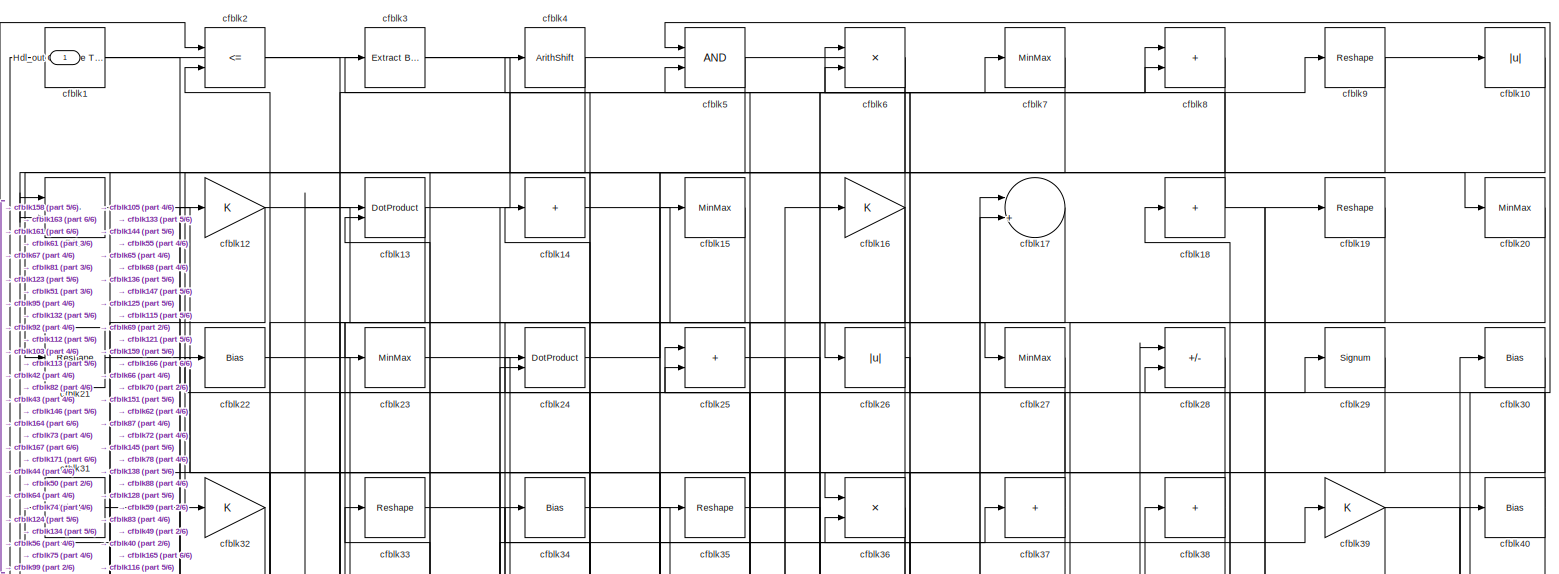
[diagram: root canvas - part 1/6, full width, top band]
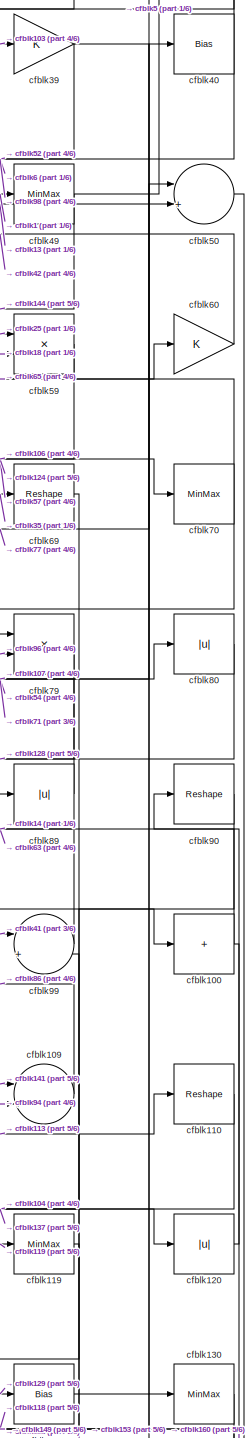
[diagram: root canvas - part 2/6, middle right region]
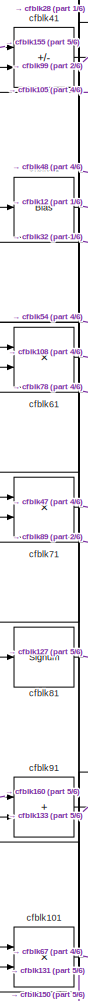
[diagram: root canvas - part 3/6, middle left region]
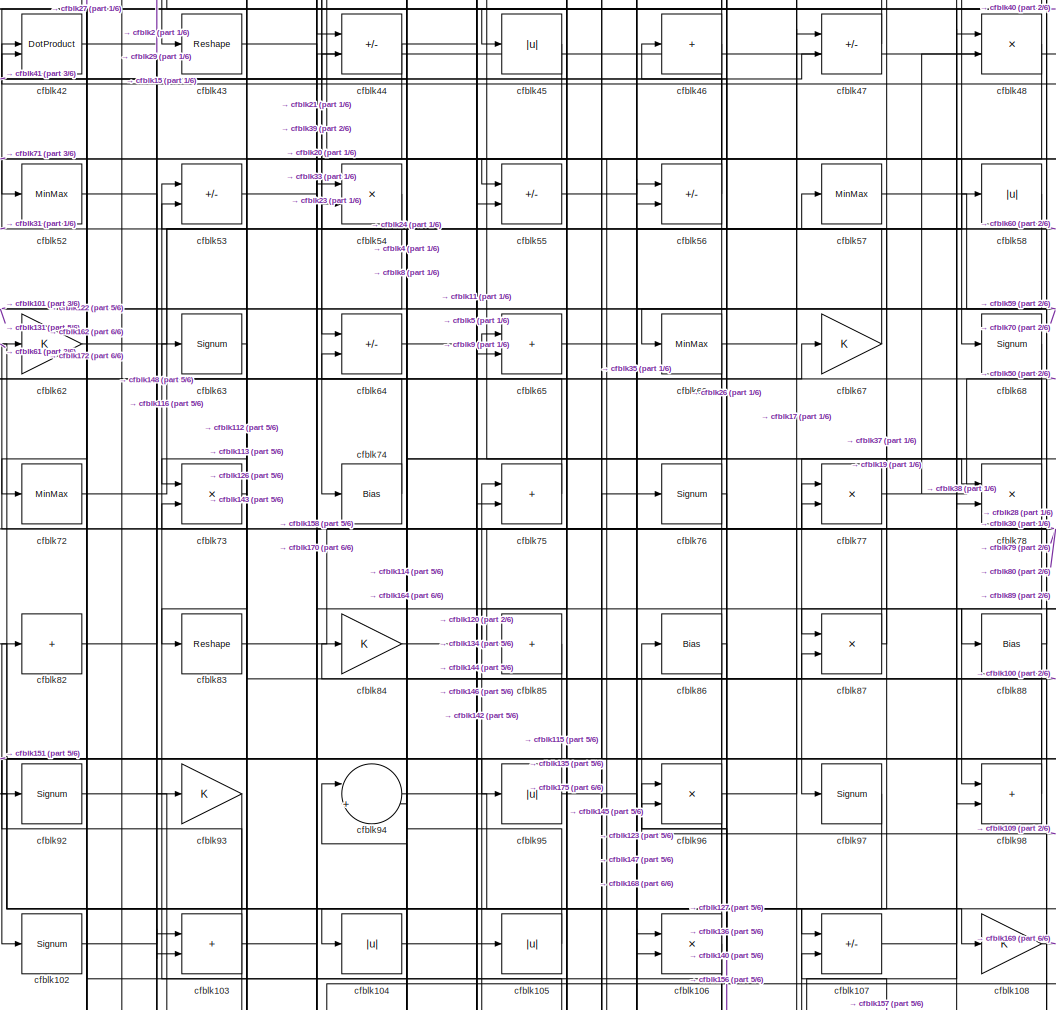
[diagram: root canvas - part 4/6, central region]
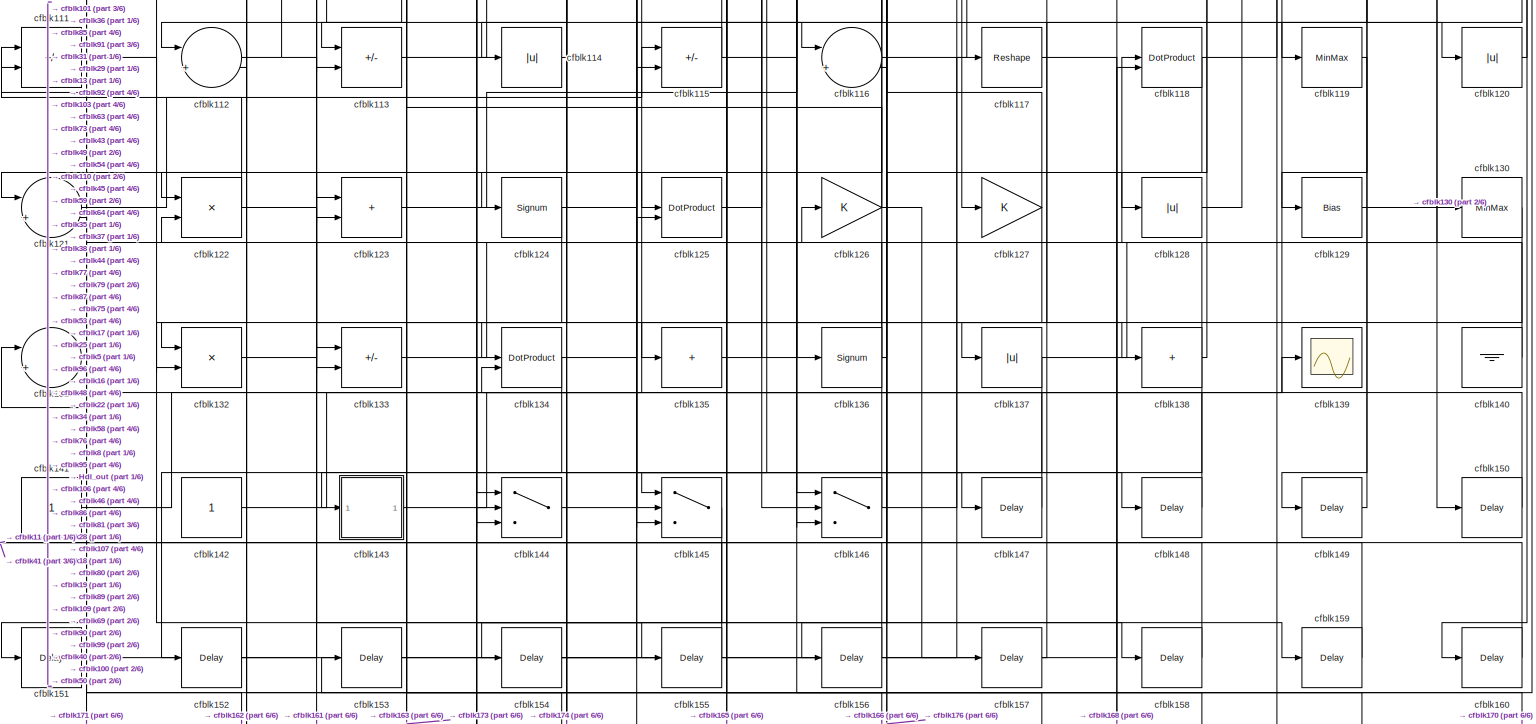
[diagram: root canvas - part 5/6, full width, bottom band]
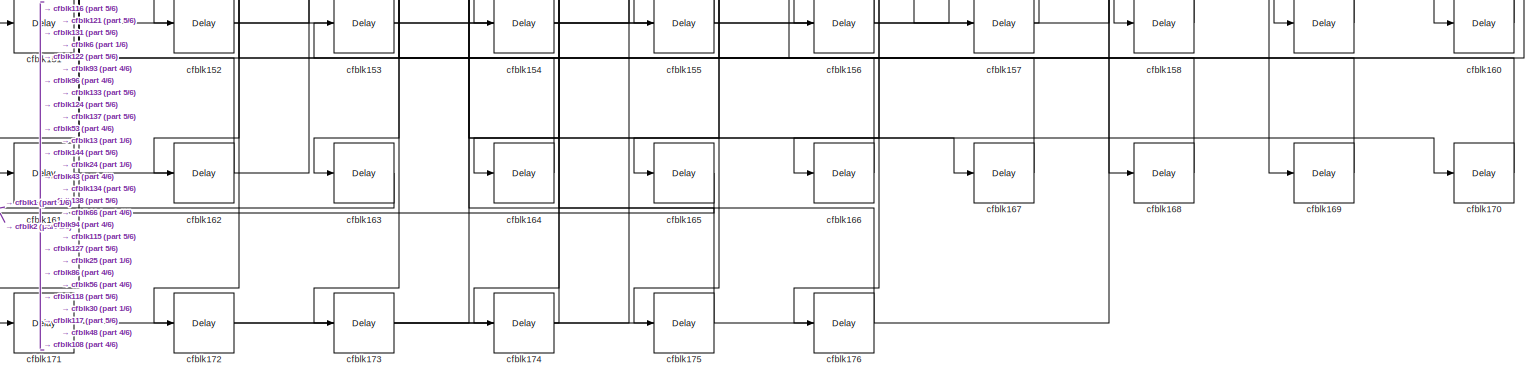
[diagram: root canvas - part 6/6, full width, bottom band]
MODEL slx_bb06ebc28763
KIND model
CONFIG AbsTol = auto
CONFIG EnableMultiTasking = off
CONFIG FixedStep = auto
CONFIG MaxStep = auto
CONFIG MinStep = auto
CONFIG RelTol = 1e-3
CONFIG SampleTimeConstraint = Unconstrained
CONFIG SolverName = VariableStepAuto
CONFIG StartTime = 0.0
CONFIG StopTime = 10.0
BLOCK [Outport] Hdl_out
  OutDataTypeStr = uint8
BLOCK [Reference] cfblk1  REF=hdlsllib/Logic and Bit
Operations/Compare
To Constant
  SourceBlock = hdlsllib/Logic and Bit\nOperations/Compare\nTo Constant
  SourceType = Compare To Constant
BLOCK [Abs] cfblk10
  OutDataTypeStr = uint8
  SaturateOnIntegerOverflow = off
BLOCK [Sum] cfblk100
  IconShape = rectangular
  Inputs = +
  OutDataTypeStr = uint8
BLOCK [Product] cfblk101
  Inputs = */
  OutDataTypeStr = uint8
  RndMeth = Zero
  SaturateOnIntegerOverflow = on
BLOCK [Signum] cfblk102
BLOCK [Sum] cfblk103
  IconShape = rectangular
  OutDataTypeStr = uint8
BLOCK [Abs] cfblk104
  OutDataTypeStr = uint8
  SaturateOnIntegerOverflow = off
BLOCK [Abs] cfblk105
  OutDataTypeStr = uint8
  SaturateOnIntegerOverflow = off
BLOCK [Product] cfblk106
  Inputs = */
  OutDataTypeStr = uint8
  RndMeth = Zero
  SaturateOnIntegerOverflow = on
BLOCK [Sum] cfblk107
  IconShape = rectangular
  Inputs = +-
  OutDataTypeStr = uint8
BLOCK [Gain] cfblk108
  OutDataTypeStr = uint8
BLOCK [Sum] cfblk109
  Inputs = |++
  OutDataTypeStr = uint8
BLOCK [Sum] cfblk11
  IconShape = rectangular
  Inputs = +-
  OutDataTypeStr = uint8
BLOCK [Reshape] cfblk110
BLOCK [Sum] cfblk111
  IconShape = rectangular
  Inputs = +-
  OutDataTypeStr = uint8
BLOCK [Sum] cfblk112
  Inputs = |++
  OutDataTypeStr = uint8
BLOCK [Sum] cfblk113
  IconShape = rectangular
  Inputs = +-
  OutDataTypeStr = uint8
BLOCK [Abs] cfblk114
  OutDataTypeStr = uint8
  SaturateOnIntegerOverflow = off
BLOCK [Sum] cfblk115
  IconShape = rectangular
  Inputs = +-
  OutDataTypeStr = uint8
BLOCK [Sum] cfblk116
  Inputs = |++
  OutDataTypeStr = uint8
BLOCK [Reshape] cfblk117
BLOCK [DotProduct] cfblk118
  OutDataTypeStr = uint8
BLOCK [MinMax] cfblk119
  OutDataTypeStr = uint8
BLOCK [Gain] cfblk12
  OutDataTypeStr = uint8
BLOCK [Abs] cfblk120
  OutDataTypeStr = uint8
  SaturateOnIntegerOverflow = off
BLOCK [Sum] cfblk121
  Inputs = |++
  OutDataTypeStr = uint8
BLOCK [Product] cfblk122
  Inputs = */
  OutDataTypeStr = uint8
  RndMeth = Zero
  SaturateOnIntegerOverflow = on
BLOCK [Sum] cfblk123
  IconShape = rectangular
  OutDataTypeStr = uint8
BLOCK [Signum] cfblk124
BLOCK [DotProduct] cfblk125
  OutDataTypeStr = uint8
BLOCK [Gain] cfblk126
  OutDataTypeStr = uint8
BLOCK [Gain] cfblk127
  OutDataTypeStr = uint8
BLOCK [Abs] cfblk128
  OutDataTypeStr = uint8
  SaturateOnIntegerOverflow = off
BLOCK [Bias] cfblk129
  Bias = 0.0
  SaturateOnIntegerOverflow = off
BLOCK [DotProduct] cfblk13
  OutDataTypeStr = uint8
BLOCK [MinMax] cfblk130
  OutDataTypeStr = uint8
BLOCK [Sum] cfblk131
  Inputs = |++
  OutDataTypeStr = uint8
BLOCK [Product] cfblk132
  Inputs = */
  OutDataTypeStr = uint8
  RndMeth = Zero
  SaturateOnIntegerOverflow = on
BLOCK [Sum] cfblk133
  IconShape = rectangular
  Inputs = +-
  OutDataTypeStr = uint8
BLOCK [DotProduct] cfblk134
  OutDataTypeStr = uint8
BLOCK [Sum] cfblk135
  IconShape = rectangular
  Inputs = +
  OutDataTypeStr = uint8
BLOCK [Signum] cfblk136
BLOCK [Abs] cfblk137
  OutDataTypeStr = uint8
  SaturateOnIntegerOverflow = off
BLOCK [Sum] cfblk138
  IconShape = rectangular
  Inputs = +
  OutDataTypeStr = uint8
BLOCK [Scope] cfblk139
  Floating = off
  NumInputPorts = 1
  ScopeSpecificationString = Simulink.scopes.TimeScopeBlockCfg('CurrentConfiguration', extmgr.ConfigurationSet(extmgr.Configuration('Core','General UI',true),extmgr.Configuration('Core','Source UI',true),extmgr.Configuration('Sources','WiredSimulink',true,'DataLoggingVariableName','ScopeData2','DataLoggingSaveFormat','Array','DataLoggingLimitDataPoints',true,'DataLoggingDecimation','1'),extmgr.Configuration('Visuals','Time Do...<+868ch>
BLOCK [Sum] cfblk14
  IconShape = rectangular
  Inputs = +
  OutDataTypeStr = uint8
BLOCK [Ground] cfblk140
BLOCK [Constant] cfblk141
  OutDataTypeStr = uint8
  SampleTime = -1
BLOCK [Constant] cfblk142
  OutDataTypeStr = uint8
  SampleTime = -1
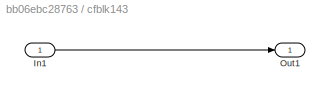
BLOCK [SubSystem] cfblk143
  LibrarySourceBlock = hdlsllib/Ports &\nSubsystems/Subsystem
BLOCK [Inport] cfblk143/In1
BLOCK [Outport] cfblk143/Out1
BLOCK [Switch] cfblk144
  InputSameDT = off
  OutDataTypeStr = uint8
  SaturateOnIntegerOverflow = off
BLOCK [Switch] cfblk145
  InputSameDT = off
  OutDataTypeStr = uint8
  SaturateOnIntegerOverflow = off
BLOCK [Switch] cfblk146
  InputSameDT = off
  OutDataTypeStr = uint8
  SaturateOnIntegerOverflow = off
BLOCK [Delay] cfblk147
  InputPortMap = u0
  SampleTime = 1
BLOCK [Delay] cfblk148
  InputPortMap = u0
  SampleTime = 1
BLOCK [Delay] cfblk149
  InputPortMap = u0
  SampleTime = 1
BLOCK [MinMax] cfblk15
  OutDataTypeStr = uint8
BLOCK [Delay] cfblk150
  InputPortMap = u0
  SampleTime = 1
BLOCK [Delay] cfblk151
  InputPortMap = u0
  SampleTime = 1
BLOCK [Delay] cfblk152
  InputPortMap = u0
  SampleTime = 1
BLOCK [Delay] cfblk153
  InputPortMap = u0
  SampleTime = 1
BLOCK [Delay] cfblk154
  InputPortMap = u0
  SampleTime = 1
BLOCK [Delay] cfblk155
  InputPortMap = u0
  SampleTime = 1
BLOCK [Delay] cfblk156
  InputPortMap = u0
  SampleTime = 1
BLOCK [Delay] cfblk157
  InputPortMap = u0
  SampleTime = 1
BLOCK [Delay] cfblk158
  InputPortMap = u0
  SampleTime = 1
BLOCK [Delay] cfblk159
  InputPortMap = u0
  SampleTime = 1
BLOCK [Gain] cfblk16
  OutDataTypeStr = uint8
BLOCK [Delay] cfblk160
  InputPortMap = u0
  SampleTime = 1
BLOCK [Delay] cfblk161
  InputPortMap = u0
  SampleTime = 1
BLOCK [Delay] cfblk162
  InputPortMap = u0
  SampleTime = 1
BLOCK [Delay] cfblk163
  InputPortMap = u0
  SampleTime = 1
BLOCK [Delay] cfblk164
  InputPortMap = u0
  SampleTime = 1
BLOCK [Delay] cfblk165
  InputPortMap = u0
  SampleTime = 1
BLOCK [Delay] cfblk166
  InputPortMap = u0
  SampleTime = 1
BLOCK [Delay] cfblk167
  InputPortMap = u0
  SampleTime = 1
BLOCK [Delay] cfblk168
  InputPortMap = u0
  SampleTime = 1
BLOCK [Delay] cfblk169
  InputPortMap = u0
  SampleTime = 1
BLOCK [Sum] cfblk17
  Inputs = |++
  OutDataTypeStr = uint8
BLOCK [Delay] cfblk170
  InputPortMap = u0
  SampleTime = 1
BLOCK [Delay] cfblk171
  InputPortMap = u0
  SampleTime = 1
BLOCK [Delay] cfblk172
  InputPortMap = u0
  SampleTime = 1
BLOCK [Delay] cfblk173
  InputPortMap = u0
  SampleTime = 1
BLOCK [Delay] cfblk174
  InputPortMap = u0
  SampleTime = 1
BLOCK [Delay] cfblk175
  InputPortMap = u0
  SampleTime = 1
BLOCK [Delay] cfblk176
  InputPortMap = u0
  SampleTime = 1
BLOCK [Sum] cfblk18
  IconShape = rectangular
  Inputs = +
  OutDataTypeStr = uint8
BLOCK [Reshape] cfblk19
BLOCK [RelationalOperator] cfblk2
  InputSameDT = off
  Operator = <=
  OutDataTypeStr = boolean
BLOCK [MinMax] cfblk20
  OutDataTypeStr = uint8
BLOCK [Reshape] cfblk21
BLOCK [Bias] cfblk22
  Bias = 0.0
  SaturateOnIntegerOverflow = off
BLOCK [MinMax] cfblk23
  OutDataTypeStr = uint8
BLOCK [DotProduct] cfblk24
  OutDataTypeStr = uint8
BLOCK [Sum] cfblk25
  IconShape = rectangular
  OutDataTypeStr = uint8
BLOCK [Abs] cfblk26
  OutDataTypeStr = uint8
  SaturateOnIntegerOverflow = off
BLOCK [MinMax] cfblk27
  OutDataTypeStr = uint8
BLOCK [Sum] cfblk28
  IconShape = rectangular
  Inputs = +-
  OutDataTypeStr = uint8
BLOCK [Signum] cfblk29
BLOCK [Reference] cfblk3  REF=simulink/Logic and Bit
Operations/Extract Bits
  LibrarySourceBlock = hdlsllib/Logic and Bit\nOperations/Extract Bits
  SourceBlock = simulink/Logic and Bit\nOperations/Extract Bits
  SourceType = Extract Bits
BLOCK [Bias] cfblk30
  Bias = 0.0
  SaturateOnIntegerOverflow = off
BLOCK [MinMax] cfblk31
  OutDataTypeStr = uint8
BLOCK [Gain] cfblk32
  OutDataTypeStr = uint8
BLOCK [Reshape] cfblk33
BLOCK [Bias] cfblk34
  Bias = 0.0
  SaturateOnIntegerOverflow = off
BLOCK [Reshape] cfblk35
BLOCK [Product] cfblk36
  Inputs = */
  OutDataTypeStr = uint8
  RndMeth = Zero
  SaturateOnIntegerOverflow = on
BLOCK [Sum] cfblk37
  IconShape = rectangular
  Inputs = +
  OutDataTypeStr = uint8
BLOCK [Sum] cfblk38
  IconShape = rectangular
  Inputs = +
  OutDataTypeStr = uint8
BLOCK [Gain] cfblk39
  OutDataTypeStr = uint8
BLOCK [ArithShift] cfblk4
  BitShiftNumber = 8
  InputPortMap = u0
BLOCK [Bias] cfblk40
  Bias = 0.0
  SaturateOnIntegerOverflow = off
BLOCK [Sum] cfblk41
  IconShape = rectangular
  Inputs = +-
  OutDataTypeStr = uint8
BLOCK [DotProduct] cfblk42
  OutDataTypeStr = uint8
BLOCK [Reshape] cfblk43
BLOCK [Sum] cfblk44
  IconShape = rectangular
  Inputs = +-
  OutDataTypeStr = uint8
BLOCK [Abs] cfblk45
  OutDataTypeStr = uint8
  SaturateOnIntegerOverflow = off
BLOCK [Sum] cfblk46
  IconShape = rectangular
  Inputs = +
  OutDataTypeStr = uint8
BLOCK [Sum] cfblk47
  IconShape = rectangular
  Inputs = +-
  OutDataTypeStr = uint8
BLOCK [Product] cfblk48
  Inputs = */
  OutDataTypeStr = uint8
  RndMeth = Zero
  SaturateOnIntegerOverflow = on
BLOCK [MinMax] cfblk49
  OutDataTypeStr = uint8
BLOCK [Logic] cfblk5
  AllPortsSameDT = off
  OutDataTypeStr = boolean
BLOCK [Sum] cfblk50
  Inputs = |++
  OutDataTypeStr = uint8
BLOCK [Bias] cfblk51
  Bias = 0.0
  SaturateOnIntegerOverflow = off
BLOCK [MinMax] cfblk52
  OutDataTypeStr = uint8
BLOCK [Sum] cfblk53
  IconShape = rectangular
  Inputs = +-
  OutDataTypeStr = uint8
BLOCK [Product] cfblk54
  Inputs = */
  OutDataTypeStr = uint8
  RndMeth = Zero
  SaturateOnIntegerOverflow = on
BLOCK [Sum] cfblk55
  IconShape = rectangular
  Inputs = +-
  OutDataTypeStr = uint8
BLOCK [Sum] cfblk56
  IconShape = rectangular
  Inputs = +-
  OutDataTypeStr = uint8
BLOCK [MinMax] cfblk57
  OutDataTypeStr = uint8
BLOCK [Abs] cfblk58
  OutDataTypeStr = uint8
  SaturateOnIntegerOverflow = off
BLOCK [Product] cfblk59
  Inputs = */
  OutDataTypeStr = uint8
  RndMeth = Zero
  SaturateOnIntegerOverflow = on
BLOCK [Product] cfblk6
  Inputs = */
  OutDataTypeStr = uint8
  RndMeth = Zero
  SaturateOnIntegerOverflow = on
BLOCK [Gain] cfblk60
  OutDataTypeStr = uint8
BLOCK [Product] cfblk61
  Inputs = */
  OutDataTypeStr = uint8
  RndMeth = Zero
  SaturateOnIntegerOverflow = on
BLOCK [Gain] cfblk62
  OutDataTypeStr = uint8
BLOCK [Signum] cfblk63
BLOCK [Sum] cfblk64
  IconShape = rectangular
  Inputs = +-
  OutDataTypeStr = uint8
BLOCK [Sum] cfblk65
  IconShape = rectangular
  OutDataTypeStr = uint8
BLOCK [MinMax] cfblk66
  OutDataTypeStr = uint8
BLOCK [Gain] cfblk67
  OutDataTypeStr = uint8
BLOCK [Signum] cfblk68
BLOCK [Reshape] cfblk69
BLOCK [MinMax] cfblk7
  OutDataTypeStr = uint8
BLOCK [MinMax] cfblk70
  OutDataTypeStr = uint8
BLOCK [Product] cfblk71
  Inputs = */
  OutDataTypeStr = uint8
  RndMeth = Zero
  SaturateOnIntegerOverflow = on
BLOCK [MinMax] cfblk72
  OutDataTypeStr = uint8
BLOCK [Product] cfblk73
  Inputs = */
  OutDataTypeStr = uint8
  RndMeth = Zero
  SaturateOnIntegerOverflow = on
BLOCK [Bias] cfblk74
  Bias = 0.0
  SaturateOnIntegerOverflow = off
BLOCK [Sum] cfblk75
  IconShape = rectangular
  OutDataTypeStr = uint8
BLOCK [Signum] cfblk76
BLOCK [Product] cfblk77
  Inputs = */
  OutDataTypeStr = uint8
  RndMeth = Zero
  SaturateOnIntegerOverflow = on
BLOCK [Product] cfblk78
  Inputs = */
  OutDataTypeStr = uint8
  RndMeth = Zero
  SaturateOnIntegerOverflow = on
BLOCK [Product] cfblk79
  Inputs = */
  OutDataTypeStr = uint8
  RndMeth = Zero
  SaturateOnIntegerOverflow = on
BLOCK [Sum] cfblk8
  IconShape = rectangular
  OutDataTypeStr = uint8
BLOCK [Abs] cfblk80
  OutDataTypeStr = uint8
  SaturateOnIntegerOverflow = off
BLOCK [Signum] cfblk81
BLOCK [Sum] cfblk82
  IconShape = rectangular
  Inputs = +
  OutDataTypeStr = uint8
BLOCK [Reshape] cfblk83
BLOCK [Gain] cfblk84
  OutDataTypeStr = uint8
BLOCK [Sum] cfblk85
  IconShape = rectangular
  Inputs = +
  OutDataTypeStr = uint8
BLOCK [Bias] cfblk86
  Bias = 0.0
  SaturateOnIntegerOverflow = off
BLOCK [Product] cfblk87
  Inputs = */
  OutDataTypeStr = uint8
  RndMeth = Zero
  SaturateOnIntegerOverflow = on
BLOCK [Bias] cfblk88
  Bias = 0.0
  SaturateOnIntegerOverflow = off
BLOCK [Abs] cfblk89
  OutDataTypeStr = uint8
  SaturateOnIntegerOverflow = off
BLOCK [Reshape] cfblk9
BLOCK [Reshape] cfblk90
BLOCK [Sum] cfblk91
  IconShape = rectangular
  OutDataTypeStr = uint8
BLOCK [Signum] cfblk92
BLOCK [Gain] cfblk93
  OutDataTypeStr = uint8
BLOCK [Sum] cfblk94
  Inputs = |++
  OutDataTypeStr = uint8
BLOCK [Abs] cfblk95
  OutDataTypeStr = uint8
  SaturateOnIntegerOverflow = off
BLOCK [Product] cfblk96
  Inputs = */
  OutDataTypeStr = uint8
  RndMeth = Zero
  SaturateOnIntegerOverflow = on
BLOCK [Signum] cfblk97
BLOCK [Sum] cfblk98
  IconShape = rectangular
  OutDataTypeStr = uint8
BLOCK [Sum] cfblk99
  Inputs = |++
  OutDataTypeStr = uint8
NET cfblk100:1 -> cfblk160:1, cfblk63:1
LINE cfblk101:1 -> cfblk67:1
LINE cfblk102:1 -> cfblk44:2
NET cfblk103:1 -> cfblk112:2, cfblk39:1, cfblk77:2, cfblk82:1
LINE cfblk104:1 -> cfblk120:1
LINE cfblk105:1 -> cfblk41:2
LINE cfblk106:1 -> cfblk145:2
LINE cfblk107:1 -> cfblk80:1
LINE cfblk108:1 -> cfblk169:1
LINE cfblk109:1 -> cfblk86:1
LINE cfblk10:1 -> cfblk21:1
LINE cfblk110:1 -> cfblk137:1
LINE cfblk111:1 -> cfblk155:1
NET cfblk112:1 -> cfblk13:1, cfblk159:1
LINE cfblk113:1 -> cfblk110:1
LINE cfblk114:1 -> cfblk64:2
NET cfblk115:1 -> cfblk53:1, cfblk8:1
NET cfblk116:1 -> cfblk171:1, cfblk22:1, cfblk28:1
LINE cfblk117:1 -> cfblk168:1
NET cfblk118:1 -> cfblk176:1, cfblk89:1
LINE cfblk119:1 -> cfblk149:1
LINE cfblk11:1 -> cfblk105:1
LINE cfblk120:1 -> cfblk90:1
LINE cfblk121:1 -> cfblk115:1
NET cfblk122:1 -> cfblk111:2, cfblk138:1
LINE cfblk123:1 -> cfblk58:1
NET cfblk124:1 -> cfblk173:1, cfblk34:1, cfblk79:1
LINE cfblk125:1 -> cfblk16:1
NET cfblk126:1 -> cfblk157:1, cfblk73:2
NET cfblk127:1 -> cfblk165:1, cfblk46:1
LINE cfblk128:1 -> cfblk19:1
LINE cfblk129:1 -> cfblk150:1
NET cfblk12:1 -> cfblk26:1, cfblk81:1
NET cfblk130:1 -> cfblk118:1, cfblk132:2
LINE cfblk131:1 -> cfblk91:2
LINE cfblk132:1 -> cfblk126:1
NET cfblk133:1 -> cfblk148:1, cfblk35:1
NET cfblk134:1 -> cfblk152:1, cfblk77:1
NET cfblk135:1 -> cfblk106:1, cfblk76:1
NET cfblk136:1 -> cfblk111:1, cfblk96:2
NET cfblk137:1 -> cfblk163:1, cfblk40:1
NET cfblk138:1 -> cfblk174:1, cfblk18:1, cfblk25:1
NET cfblk13:1 -> cfblk113:2, cfblk167:1, cfblk50:2, cfblk7:1
LINE cfblk140:1 -> cfblk96:1
LINE cfblk141:1 -> cfblk109:1
LINE cfblk142:1 -> cfblk75:1
LINE cfblk143/In1:1 -> cfblk143/Out1:1
LINE cfblk143:1 -> cfblk139:1
NET cfblk144:1 -> cfblk37:1, cfblk87:2
LINE cfblk145:1 -> cfblk154:1
NET cfblk146:1 -> Hdl_out:1, cfblk117:1
LINE cfblk147:1 -> cfblk5:2
LINE cfblk148:1 -> cfblk103:1
LINE cfblk149:1 -> cfblk99:2
LINE cfblk14:1 -> cfblk27:1
LINE cfblk150:1 -> cfblk101:2
LINE cfblk151:1 -> cfblk17:2
LINE cfblk152:1 -> cfblk123:1
LINE cfblk153:1 -> cfblk118:2
LINE cfblk154:1 -> cfblk125:2
LINE cfblk155:1 -> cfblk41:1
LINE cfblk156:1 -> cfblk54:1
LINE cfblk157:1 -> cfblk107:2
LINE cfblk158:1 -> cfblk11:1
LINE cfblk159:1 -> cfblk36:2
NET cfblk15:1 -> cfblk43:1, cfblk92:1
LINE cfblk160:1 -> cfblk91:1
LINE cfblk161:1 -> cfblk133:1
LINE cfblk162:1 -> cfblk131:1
LINE cfblk163:1 -> cfblk1:1
LINE cfblk164:1 -> cfblk13:2
LINE cfblk165:1 -> cfblk2:1
LINE cfblk166:1 -> cfblk121:2
LINE cfblk167:1 -> cfblk25:2
LINE cfblk168:1 -> cfblk56:1
LINE cfblk169:1 -> cfblk53:2
LINE cfblk16:1 -> cfblk23:1
LINE cfblk170:1 -> cfblk122:2
LINE cfblk171:1 -> cfblk24:2
LINE cfblk172:1 -> cfblk48:1
LINE cfblk173:1 -> cfblk115:2
LINE cfblk174:1 -> cfblk134:2
LINE cfblk175:1 -> cfblk94:1
LINE cfblk176:1 -> cfblk144:2
LINE cfblk17:1 -> cfblk125:1
NET cfblk18:1 -> cfblk3:1, cfblk59:2
LINE cfblk19:1 -> cfblk87:1
LINE cfblk1:1 -> cfblk49:1
LINE cfblk20:1 -> cfblk74:1
LINE cfblk21:1 -> cfblk44:1
LINE cfblk22:1 -> cfblk146:1
NET cfblk23:1 -> cfblk55:2, cfblk68:1
LINE cfblk24:1 -> cfblk15:1
NET cfblk25:1 -> cfblk146:2, cfblk59:1
LINE cfblk26:1 -> cfblk66:1
LINE cfblk27:1 -> cfblk72:1
LINE cfblk28:1 -> cfblk61:1
LINE cfblk29:1 -> cfblk132:1
LINE cfblk2:1 -> cfblk103:2
LINE cfblk30:1 -> cfblk166:1
NET cfblk31:1 -> cfblk123:2, cfblk95:1
LINE cfblk32:1 -> cfblk51:1
LINE cfblk33:1 -> cfblk64:1
LINE cfblk34:1 -> cfblk136:1
NET cfblk35:1 -> cfblk69:1, cfblk78:1
LINE cfblk36:1 -> cfblk121:1
NET cfblk37:1 -> cfblk2:2, cfblk55:1
NET cfblk38:1 -> cfblk145:3, cfblk36:1, cfblk78:2
NET cfblk39:1 -> cfblk130:1, cfblk98:2
LINE cfblk3:1 -> cfblk20:1
NET cfblk40:1 -> cfblk52:1, cfblk6:1
LINE cfblk41:1 -> cfblk99:1
LINE cfblk42:1 -> cfblk29:1
NET cfblk43:1 -> cfblk158:1, cfblk170:1, cfblk88:1
NET cfblk44:1 -> cfblk112:1, cfblk146:3
LINE cfblk45:1 -> cfblk114:1
LINE cfblk46:1 -> cfblk83:1
LINE cfblk47:1 -> cfblk45:1
NET cfblk48:1 -> cfblk122:1, cfblk145:1, cfblk71:1
NET cfblk49:1 -> cfblk144:3, cfblk5:1
LINE cfblk4:1 -> cfblk11:2
LINE cfblk50:1 -> cfblk153:1
LINE cfblk51:1 -> cfblk12:1
LINE cfblk52:1 -> cfblk93:1
LINE cfblk53:1 -> cfblk144:1
LINE cfblk54:1 -> cfblk101:1
NET cfblk55:1 -> cfblk85:1, cfblk8:2
NET cfblk56:1 -> cfblk24:1, cfblk42:1
LINE cfblk57:1 -> cfblk70:1
LINE cfblk58:1 -> cfblk131:2
NET cfblk59:1 -> cfblk106:2, cfblk124:1
LINE cfblk5:1 -> cfblk75:2
LINE cfblk60:1 -> cfblk42:2
LINE cfblk61:1 -> cfblk108:1
LINE cfblk62:1 -> cfblk17:1
LINE cfblk63:1 -> cfblk113:1
LINE cfblk64:1 -> cfblk65:1
NET cfblk65:1 -> cfblk100:1, cfblk60:1
NET cfblk66:1 -> cfblk164:1, cfblk47:1
LINE cfblk67:1 -> cfblk31:1
LINE cfblk68:1 -> cfblk97:1
LINE cfblk69:1 -> cfblk119:1
LINE cfblk6:1 -> cfblk161:1
NET cfblk70:1 -> cfblk6:2, cfblk94:2
LINE cfblk71:1 -> cfblk47:2
LINE cfblk72:1 -> cfblk38:1
LINE cfblk73:1 -> cfblk143:1
LINE cfblk74:1 -> cfblk33:1
LINE cfblk75:1 -> cfblk4:1
LINE cfblk76:1 -> cfblk156:1
NET cfblk77:1 -> cfblk48:2, cfblk50:1
NET cfblk78:1 -> cfblk107:1, cfblk61:2
LINE cfblk79:1 -> cfblk98:1
LINE cfblk7:1 -> cfblk32:1
LINE cfblk80:1 -> cfblk128:1
LINE cfblk81:1 -> cfblk127:1
LINE cfblk82:1 -> cfblk9:1
LINE cfblk83:1 -> cfblk30:1
LINE cfblk84:1 -> cfblk56:2
LINE cfblk85:1 -> cfblk151:1
NET cfblk86:1 -> cfblk116:2, cfblk175:1
NET cfblk87:1 -> cfblk57:1, cfblk62:1
NET cfblk88:1 -> cfblk102:1, cfblk28:2
NET cfblk89:1 -> cfblk54:2, cfblk71:2
NET cfblk8:1 -> cfblk134:1, cfblk73:1
LINE cfblk90:1 -> cfblk129:1
LINE cfblk91:1 -> cfblk133:2
LINE cfblk92:1 -> cfblk116:1
LINE cfblk93:1 -> cfblk162:1
LINE cfblk94:1 -> cfblk109:2
LINE cfblk95:1 -> cfblk147:1
NET cfblk96:1 -> cfblk135:1, cfblk172:1, cfblk79:2
LINE cfblk97:1 -> cfblk104:1
LINE cfblk98:1 -> cfblk84:1
LINE cfblk99:1 -> cfblk14:1
NET cfblk9:1 -> cfblk10:1, cfblk65:2
note: NET lines group one-source signal fan-out (src -> all destinations, sorted); 1:1 wires keep LINE
